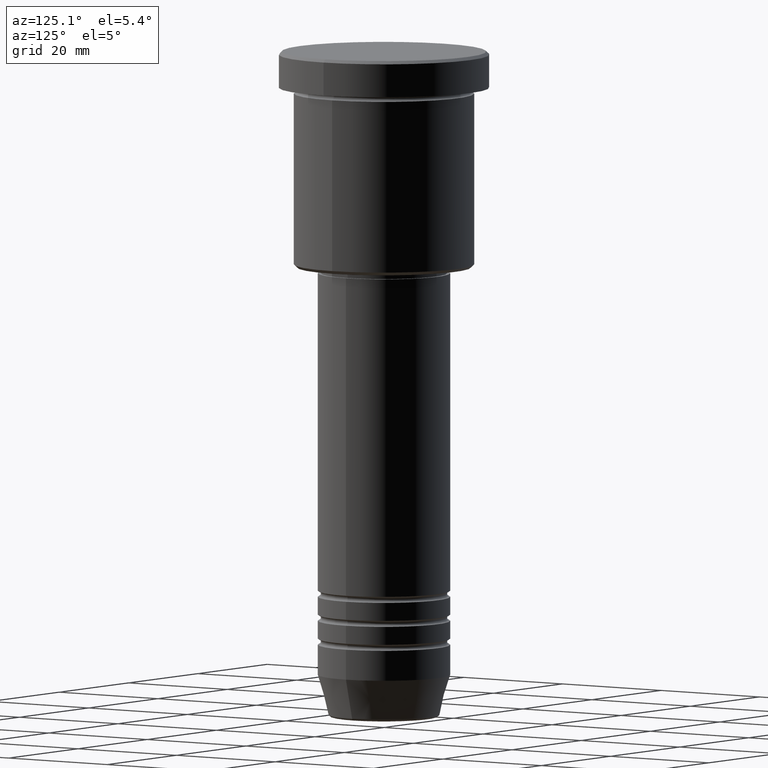
[diagram: clean part render]
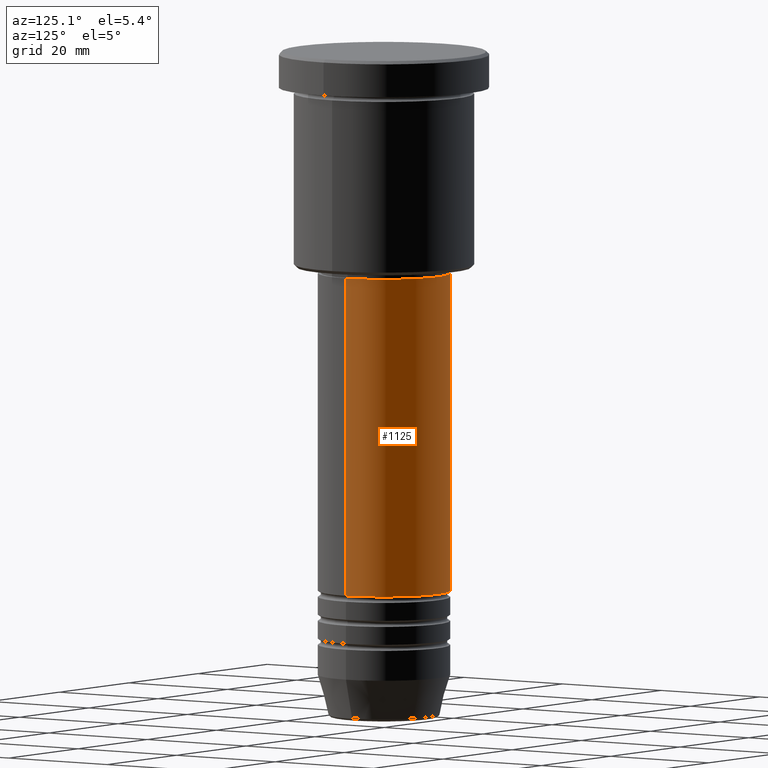
[diagram: same view with one face highlighted and labeled with its STEP entity id]
A machine part, auxiliary view. The second image highlights one B-rep face of the part: STEP entity #1125.
In plain terms, the highlighted cylindrical surface (partial cylindrical patch) has radius 11 mm, axis along (-0, -0, 1).
Its self-contained STEP definition (entity closure, byte-faithful):
#22 = EDGE_CURVE ( 'NONE', #880, #934, #543, .T. ) ;
#29 = CYLINDRICAL_SURFACE ( 'NONE', #1046, 11.00000000000000000 ) ;
#76 = EDGE_CURVE ( 'NONE', #868, #880, #764, .T. ) ;
#149 = EDGE_CURVE ( 'NONE', #802, #934, #646, .T. ) ;
#164 = VECTOR ( 'NONE', #814, 1000.000000000000000 ) ;
#213 = LINE ( 'NONE', #502, #570 ) ;
#221 = FACE_OUTER_BOUND ( 'NONE', #522, .T. ) ;
#229 = DIRECTION ( 'NONE',  ( -0.000000000000000000, -0.000000000000000000, 1.000000000000000000 ) ) ;
#298 = DIRECTION ( 'NONE',  ( 1.000000000000000000, 0.000000000000000000, 0.000000000000000000 ) ) ;
#356 = CARTESIAN_POINT ( 'NONE',  ( -11.00000000000000000, 1.347111479062088405E-15, -89.99999999999988631 ) ) ;
#360 = DIRECTION ( 'NONE',  ( 1.000000000000000000, 0.000000000000000000, 0.000000000000000000 ) ) ;
#403 = ORIENTED_EDGE ( 'NONE', *, *, #149, .F. ) ;
#502 = CARTESIAN_POINT ( 'NONE',  ( 11.00000000000000000, 0.000000000000000000, 0.000000000000000000 ) ) ;
#522 = EDGE_LOOP ( 'NONE', ( #751, #812, #403, #1004 ) ) ;
#524 = CARTESIAN_POINT ( 'NONE',  ( -11.00000000000000000, 1.347111479062088405E-15, 0.000000000000000000 ) ) ;
#543 = LINE ( 'NONE', #524, #164 ) ;
#570 = VECTOR ( 'NONE', #229, 1000.000000000000000 ) ;
#619 = CARTESIAN_POINT ( 'NONE',  ( 11.00000000000000000, 0.000000000000000000, -37.00000000000000000 ) ) ;
#646 = CIRCLE ( 'NONE', #1156, 11.00000000000000000 ) ;
#669 = CARTESIAN_POINT ( 'NONE',  ( 0.000000000000000000, 0.000000000000000000, 0.000000000000000000 ) ) ;
#693 = EDGE_CURVE ( 'NONE', #868, #802, #213, .T. ) ;
#751 = ORIENTED_EDGE ( 'NONE', *, *, #76, .T. ) ;
#764 = CIRCLE ( 'NONE', #1042, 11.00000000000000000 ) ;
#802 = VERTEX_POINT ( 'NONE', #619 ) ;
#812 = ORIENTED_EDGE ( 'NONE', *, *, #22, .T. ) ;
#814 = DIRECTION ( 'NONE',  ( -0.000000000000000000, -0.000000000000000000, 1.000000000000000000 ) ) ;
#829 = CARTESIAN_POINT ( 'NONE',  ( 0.000000000000000000, 0.000000000000000000, -37.00000000000000000 ) ) ;
#842 = DIRECTION ( 'NONE',  ( 1.000000000000000000, 0.000000000000000000, 0.000000000000000000 ) ) ;
#868 = VERTEX_POINT ( 'NONE', #894 ) ;
#880 = VERTEX_POINT ( 'NONE', #356 ) ;
#894 = CARTESIAN_POINT ( 'NONE',  ( 11.00000000000000000, 0.000000000000000000, -89.99999999999988631 ) ) ;
#909 = CARTESIAN_POINT ( 'NONE',  ( 0.000000000000000000, 0.000000000000000000, -89.99999999999988631 ) ) ;
#934 = VERTEX_POINT ( 'NONE', #1008 ) ;
#988 = DIRECTION ( 'NONE',  ( -0.000000000000000000, -0.000000000000000000, 1.000000000000000000 ) ) ;
#1004 = ORIENTED_EDGE ( 'NONE', *, *, #693, .F. ) ;
#1008 = CARTESIAN_POINT ( 'NONE',  ( -11.00000000000000000, 1.347111479062088405E-15, -37.00000000000000000 ) ) ;
#1029 = DIRECTION ( 'NONE',  ( -0.000000000000000000, -0.000000000000000000, 1.000000000000000000 ) ) ;
#1042 = AXIS2_PLACEMENT_3D ( 'NONE', #909, #988, #360 ) ;
#1046 = AXIS2_PLACEMENT_3D ( 'NONE', #669, #1029, #298 ) ;
#1108 = DIRECTION ( 'NONE',  ( -0.000000000000000000, -0.000000000000000000, 1.000000000000000000 ) ) ;
#1125 = ADVANCED_FACE ( 'NONE', ( #221 ), #29, .T. ) ;
#1156 = AXIS2_PLACEMENT_3D ( 'NONE', #829, #1108, #842 ) ;